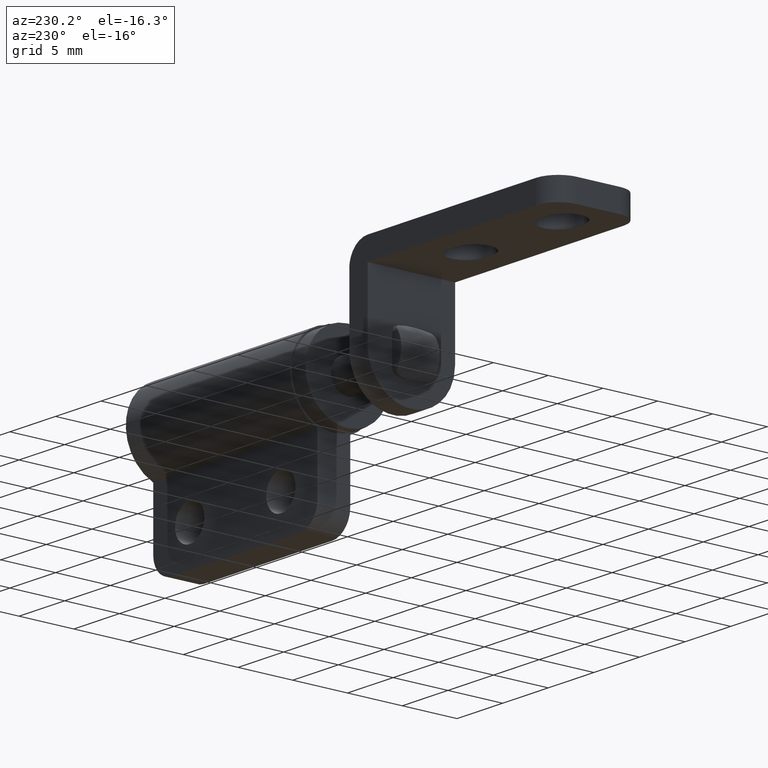
[diagram: clean part render]
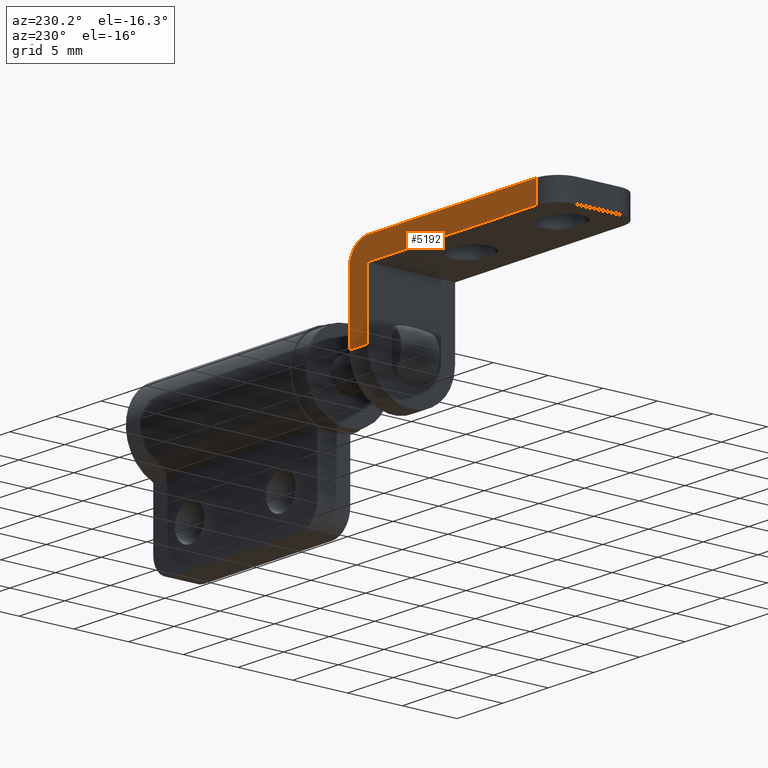
[diagram: same view with one face highlighted and labeled with its STEP entity id]
A machine part, auxiliary view. The second image highlights one B-rep face of the part: STEP entity #5192.
In plain terms, the highlighted face is a freeform B-spline surface patch.
Its self-contained STEP definition (entity closure, byte-faithful):
#4301=CARTESIAN_POINT('',(-20.500000000000000,4.0,6.000008000000210));
#4302=VERTEX_POINT('',#4301);
#4323=CARTESIAN_POINT('',(-20.500000000000000,4.0,8.000008000000209));
#4324=VERTEX_POINT('',#4323);
#4338=CARTESIAN_POINT('',(-20.500000000000000,4.0,6.000008000000210));
#4339=CARTESIAN_POINT('',(-20.500000000000000,4.0,8.000008000000209));
#4340=QUASI_UNIFORM_CURVE('',1,(#4338,#4339),.UNSPECIFIED.,.F.,.U.);
#4341=EDGE_CURVE('',#4302,#4324,#4340,.T.);
#4421=CARTESIAN_POINT('',(-2.0,4.0,8.000008000000209));
#4422=VERTEX_POINT('',#4421);
#4423=CARTESIAN_POINT('',(0.0,4.0,6.000008000000210));
#4424=VERTEX_POINT('',#4423);
#4425=CARTESIAN_POINT('',(-2.0,4.0,8.000008000000211));
#4426=CARTESIAN_POINT('',(0.0,4.000000000000000,8.000008000000211));
#4427=CARTESIAN_POINT('',(0.0,4.0,6.000008000000210));
#4435=(BOUNDED_CURVE()B_SPLINE_CURVE(2,(#4425,#4426,#4427),.UNSPECIFIED.,.F.,.U.)CURVE()GEOMETRIC_REPRESENTATION_ITEM()QUASI_UNIFORM_CURVE()RATIONAL_B_SPLINE_CURVE((1.0,0.707106781186548,1.0))REPRESENTATION_ITEM(''));
#4436=EDGE_CURVE('',#4422,#4424,#4435,.T.);
#4999=CARTESIAN_POINT('',(-2.0,3.999999999999940,0.000000698131700));
#5000=VERTEX_POINT('',#4999);
#5001=CARTESIAN_POINT('',(-2.0,4.0,6.000008000000210));
#5002=VERTEX_POINT('',#5001);
#5003=CARTESIAN_POINT('',(-2.0,3.999999999999940,0.000000698131700));
#5004=CARTESIAN_POINT('',(-2.0,4.0,6.000008000000210));
#5005=QUASI_UNIFORM_CURVE('',1,(#5003,#5004),.UNSPECIFIED.,.F.,.U.);
#5006=EDGE_CURVE('',#5000,#5002,#5005,.T.);
#5053=CARTESIAN_POINT('',(0.0,3.999999999999940,0.000000698131700));
#5054=VERTEX_POINT('',#5053);
#5055=CARTESIAN_POINT('',(0.0,3.999999999999940,0.000000698131700));
#5056=CARTESIAN_POINT('',(0.0,4.0,6.000008000000210));
#5057=QUASI_UNIFORM_CURVE('',1,(#5055,#5056),.UNSPECIFIED.,.F.,.U.);
#5058=EDGE_CURVE('',#5054,#4424,#5057,.T.);
#5133=CARTESIAN_POINT('',(-2.0,3.999999999999940,0.000000698131700));
#5134=CARTESIAN_POINT('',(0.0,3.999999999999940,0.000000698131700));
#5135=QUASI_UNIFORM_CURVE('',1,(#5133,#5134),.UNSPECIFIED.,.F.,.U.);
#5136=EDGE_CURVE('',#5000,#5054,#5135,.T.);
#5170=CARTESIAN_POINT('',(-21.523974960267029,4.0,-0.399599622509421));
#5171=CARTESIAN_POINT('',(-21.523974960267029,4.0,8.399607963013137));
#5172=CARTESIAN_POINT('',(1.023975510119871,4.0,-0.399599622509421));
#5173=CARTESIAN_POINT('',(1.023975510119871,4.0,8.399607963013137));
#5174=B_SPLINE_SURFACE_WITH_KNOTS('',1,1,((#5170,#5172),(#5171,#5173)),.UNSPECIFIED.,.F.,.F.,.U.,(2,2),(2,2),(0.0,8.799207585522558),(0.0,22.547950470386901),.UNSPECIFIED.);
#5175=CARTESIAN_POINT('',(-20.500000000000000,4.0,6.000008000000210));
#5176=CARTESIAN_POINT('',(-2.0,4.0,6.000008000000210));
#5177=QUASI_UNIFORM_CURVE('',1,(#5175,#5176),.UNSPECIFIED.,.F.,.U.);
#5178=EDGE_CURVE('',#4302,#5002,#5177,.T.);
#5179=ORIENTED_EDGE('',*,*,#5178,.F.);
#5180=ORIENTED_EDGE('',*,*,#4341,.T.);
#5181=CARTESIAN_POINT('',(-20.500000000000000,4.0,8.000008000000209));
#5182=CARTESIAN_POINT('',(-2.0,4.0,8.000008000000209));
#5183=QUASI_UNIFORM_CURVE('',1,(#5181,#5182),.UNSPECIFIED.,.F.,.U.);
#5184=EDGE_CURVE('',#4324,#4422,#5183,.T.);
#5185=ORIENTED_EDGE('',*,*,#5184,.T.);
#5186=ORIENTED_EDGE('',*,*,#4436,.T.);
#5187=ORIENTED_EDGE('',*,*,#5058,.F.);
#5188=ORIENTED_EDGE('',*,*,#5136,.F.);
#5189=ORIENTED_EDGE('',*,*,#5006,.T.);
#5190=EDGE_LOOP('',(#5179,#5180,#5185,#5186,#5187,#5188,#5189));
#5191=FACE_OUTER_BOUND('',#5190,.T.);
#5192=ADVANCED_FACE('',(#5191),#5174,.T.);